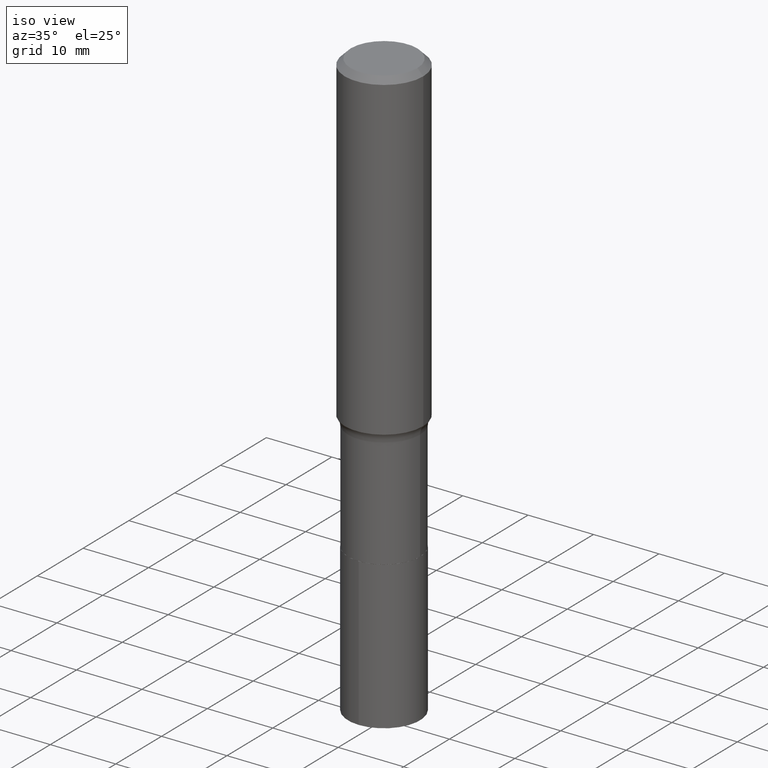
[diagram: clean part render]
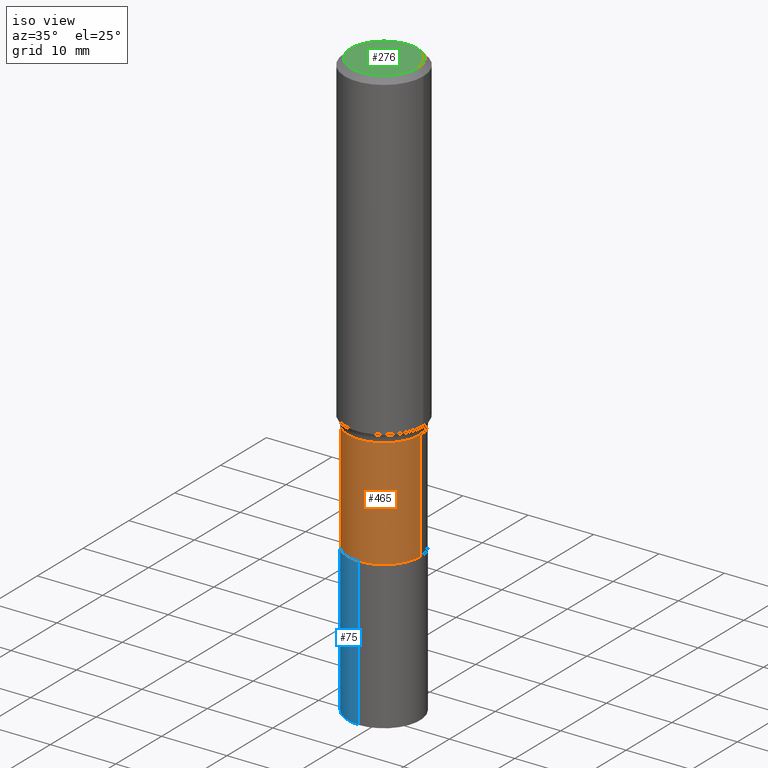
[diagram: same view with three faces highlighted in distinct colors, each labeled with its STEP entity id]
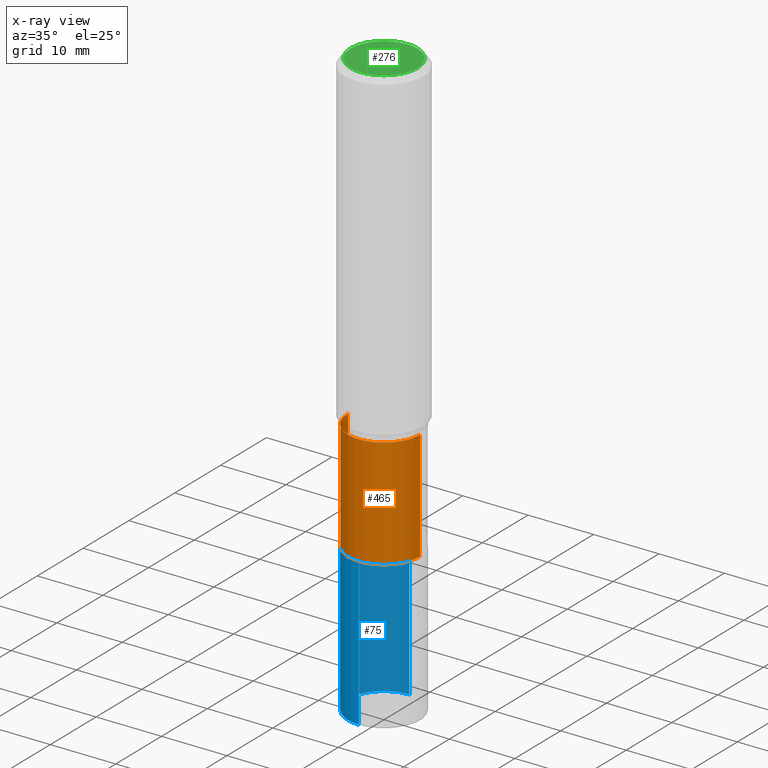
[diagram: x-ray of the same camera — body ghosted, the three highlighted faces saturated]
A machine part, iso view with three faces highlighted in distinct colors.
The next image is the same camera in x-ray (body ghosted, the three faces saturated) — at least one of them is partly hidden behind the body in this view.
Their STEP definitions:

[orange] entity #465 — the highlighted cylindrical surface (partial cylindrical patch) has radius 5.5004 mm, axis along (-0, 0, 1).
#22 = AXIS2_PLACEMENT_3D ( 'NONE', #266, #228, #132 ) ;
#27 = CARTESIAN_POINT ( 'NONE',  ( -0.2165500000000000203, 1.538680294288497096E-15, -1.065195393794699923E-29 ) ) ;
#45 = ORIENTED_EDGE ( 'NONE', *, *, #303, .F. ) ;
#52 = VERTEX_POINT ( 'NONE', #147 ) ;
#53 = VECTOR ( 'NONE', #339, 39.37007874015748143 ) ;
#59 = CARTESIAN_POINT ( 'NONE',  ( 0.2165500000000000480, -1.077436226353605461E-14, -2.652799999999999603 ) ) ;
#101 = DIRECTION ( 'NONE',  ( -2.445468806185136877E-29, 3.491481338843145188E-15, 1.000000000000000000 ) ) ;
#103 = CIRCLE ( 'NONE', #343, 0.2165500000000000480 ) ;
#107 = LINE ( 'NONE', #27, #287 ) ;
#128 = CIRCLE ( 'NONE', #171, 0.2165499999999999647 ) ;
#130 = ORIENTED_EDGE ( 'NONE', *, *, #220, .T. ) ;
#132 = DIRECTION ( 'NONE',  ( 1.000000000000000000, -6.982962677686266711E-15, 4.876176775795935793E-29 ) ) ;
#139 = DIRECTION ( 'NONE',  ( -2.445468806185136597E-29, 3.491481338843145583E-15, 1.000000000000000000 ) ) ;
#141 = FACE_OUTER_BOUND ( 'NONE', #446, .T. ) ;
#147 = CARTESIAN_POINT ( 'NONE',  ( 0.2165499999999999647, -8.461255876552473241E-15, -1.990299999999999736 ) ) ;
#171 = AXIS2_PLACEMENT_3D ( 'NONE', #429, #296, #225 ) ;
#191 = EDGE_CURVE ( 'NONE', #209, #196, #107, .T. ) ;
#196 = VERTEX_POINT ( 'NONE', #368 ) ;
#198 = VERTEX_POINT ( 'NONE', #59 ) ;
#209 = VERTEX_POINT ( 'NONE', #216 ) ;
#216 = CARTESIAN_POINT ( 'NONE',  ( -0.2165500000000000480, -6.566968207902806007E-15, -2.652799999999999603 ) ) ;
#220 = EDGE_CURVE ( 'NONE', #198, #52, #293, .T. ) ;
#225 = DIRECTION ( 'NONE',  ( 1.000000000000000000, -6.982962677686265922E-15, 0.000000000000000000 ) ) ;
#228 = DIRECTION ( 'NONE',  ( -2.445468806185136597E-29, 3.491481338843145583E-15, 1.000000000000000000 ) ) ;
#239 = EDGE_CURVE ( 'NONE', #209, #198, #103, .T. ) ;
#261 = CYLINDRICAL_SURFACE ( 'NONE', #22, 0.2165500000000000203 ) ;
#266 = CARTESIAN_POINT ( 'NONE',  ( 0.000000000000000000, 0.000000000000000000, 0.000000000000000000 ) ) ;
#287 = VECTOR ( 'NONE', #101, 39.37007874015748143 ) ;
#293 = LINE ( 'NONE', #462, #53 ) ;
#296 = DIRECTION ( 'NONE',  ( -2.445468806185136597E-29, 3.491481338843145583E-15, 1.000000000000000000 ) ) ;
#299 = CARTESIAN_POINT ( 'NONE',  ( 6.487339649047929428E-29, -9.262201695683093788E-15, -2.652799999999999603 ) ) ;
#303 = EDGE_CURVE ( 'NONE', #196, #52, #128, .T. ) ;
#339 = DIRECTION ( 'NONE',  ( -2.445468806185136877E-29, 3.491481338843145188E-15, 1.000000000000000000 ) ) ;
#343 = AXIS2_PLACEMENT_3D ( 'NONE', #299, #139, #402 ) ;
#368 = CARTESIAN_POINT ( 'NONE',  ( -0.2165499999999999647, -6.566968207902806007E-15, -1.990299999999999736 ) ) ;
#402 = DIRECTION ( 'NONE',  ( 1.000000000000000000, -6.982962677686263555E-15, 0.000000000000000000 ) ) ;
#406 = ORIENTED_EDGE ( 'NONE', *, *, #191, .F. ) ;
#429 = CARTESIAN_POINT ( 'NONE',  ( 4.867216564950276881E-29, -6.949095308699512418E-15, -1.990299999999999736 ) ) ;
#438 = ORIENTED_EDGE ( 'NONE', *, *, #239, .T. ) ;
#446 = EDGE_LOOP ( 'NONE', ( #406, #438, #130, #45 ) ) ;
#462 = CARTESIAN_POINT ( 'NONE',  ( 0.2165500000000000203, -1.512160567852961217E-15, 1.055936080798610036E-29 ) ) ;
#465 = ADVANCED_FACE ( 'NONE', ( #141 ), #261, .T. ) ;

[blue] entity #75 — the highlighted cylindrical surface (partial cylindrical patch) has radius 5.5004 mm, axis along (-0, 0, 1).
#8 = CARTESIAN_POINT ( 'NONE',  ( 1.538680294288561586E-15, 0.2165499999999907499, -2.653300000000000214 ) ) ;
#12 = EDGE_LOOP ( 'NONE', ( #88, #283, #280, #40 ) ) ;
#38 = AXIS2_PLACEMENT_3D ( 'NONE', #224, #330, #359 ) ;
#40 = ORIENTED_EDGE ( 'NONE', *, *, #348, .F. ) ;
#42 = EDGE_CURVE ( 'NONE', #340, #413, #364, .T. ) ;
#75 = ADVANCED_FACE ( 'NONE', ( #326 ), #358, .T. ) ;
#77 = CARTESIAN_POINT ( 'NONE',  ( -1.512160567852874245E-15, -0.2165500000000123715, -3.543299999999999894 ) ) ;
#83 = VECTOR ( 'NONE', #404, 39.37007874015748143 ) ;
#88 = ORIENTED_EDGE ( 'NONE', *, *, #407, .F. ) ;
#116 = CARTESIAN_POINT ( 'NONE',  ( 6.488562383451022229E-29, -9.263947436352516081E-15, -2.653299999999999770 ) ) ;
#120 = DIRECTION ( 'NONE',  ( -2.443805902237646551E-29, 3.493862711942566670E-15, 1.000000000000000000 ) ) ;
#149 = DIRECTION ( 'NONE',  ( -6.982962677686265133E-15, -1.000000000000000000, 2.523064413451178124E-15 ) ) ;
#184 = DIRECTION ( 'NONE',  ( -2.443805902237646271E-29, 3.493862711942566670E-15, 1.000000000000000000 ) ) ;
#194 = CARTESIAN_POINT ( 'NONE',  ( 1.538680294288583674E-15, 0.2165499999999907499, -2.653300000000000214 ) ) ;
#204 = AXIS2_PLACEMENT_3D ( 'NONE', #219, #264, #149 ) ;
#219 = CARTESIAN_POINT ( 'NONE',  ( 8.663549636442529927E-29, -1.237348524998140250E-14, -3.543300000000000338 ) ) ;
#224 = CARTESIAN_POINT ( 'NONE',  ( 6.488562383451022229E-29, -9.263947436352516081E-15, -2.653299999999999770 ) ) ;
#231 = CARTESIAN_POINT ( 'NONE',  ( -1.512160567852896136E-15, -0.2165500000000092629, -2.653299999999999326 ) ) ;
#264 = DIRECTION ( 'NONE',  ( -2.443805902237646271E-29, 3.493862711942566670E-15, 1.000000000000000000 ) ) ;
#280 = ORIENTED_EDGE ( 'NONE', *, *, #351, .T. ) ;
#283 = ORIENTED_EDGE ( 'NONE', *, *, #42, .T. ) ;
#288 = VERTEX_POINT ( 'NONE', #301 ) ;
#301 = CARTESIAN_POINT ( 'NONE',  ( -1.512160567852896136E-15, -0.2165500000000092629, -2.653299999999999326 ) ) ;
#302 = CIRCLE ( 'NONE', #419, 0.2165500000000000203 ) ;
#326 = FACE_OUTER_BOUND ( 'NONE', #12, .T. ) ;
#330 = DIRECTION ( 'NONE',  ( -2.443805902237646271E-29, 3.493862711942566670E-15, 1.000000000000000000 ) ) ;
#340 = VERTEX_POINT ( 'NONE', #431 ) ;
#348 = EDGE_CURVE ( 'NONE', #352, #288, #302, .T. ) ;
#351 = EDGE_CURVE ( 'NONE', #413, #288, #427, .T. ) ;
#352 = VERTEX_POINT ( 'NONE', #194 ) ;
#358 = CYLINDRICAL_SURFACE ( 'NONE', #38, 0.2165500000000000203 ) ;
#359 = DIRECTION ( 'NONE',  ( -6.982962677686265133E-15, -1.000000000000000000, 2.523064413451178124E-15 ) ) ;
#364 = CIRCLE ( 'NONE', #204, 0.2165500000000000203 ) ;
#375 = LINE ( 'NONE', #8, #383 ) ;
#383 = VECTOR ( 'NONE', #120, 39.37007874015748143 ) ;
#404 = DIRECTION ( 'NONE',  ( -2.443805902237646551E-29, 3.493862711942566670E-15, 1.000000000000000000 ) ) ;
#407 = EDGE_CURVE ( 'NONE', #340, #352, #375, .T. ) ;
#413 = VERTEX_POINT ( 'NONE', #77 ) ;
#419 = AXIS2_PLACEMENT_3D ( 'NONE', #116, #184, #464 ) ;
#427 = LINE ( 'NONE', #231, #83 ) ;
#431 = CARTESIAN_POINT ( 'NONE',  ( 1.538680294288572433E-15, 0.2165499999999876413, -3.543300000000000782 ) ) ;
#464 = DIRECTION ( 'NONE',  ( -6.982962677686265133E-15, -1.000000000000000000, 2.523064413451178124E-15 ) ) ;

[green] entity #276 — the highlighted planar face has unit normal (0, -0, -1).
#11 = DIRECTION ( 'NONE',  ( -2.445468806185136597E-29, 3.491481338843145583E-15, 1.000000000000000000 ) ) ;
#46 = CIRCLE ( 'NONE', #205, 0.2007700000000000040 ) ;
#62 = DIRECTION ( 'NONE',  ( -1.000000000000000000, 6.982962677686265922E-15, -4.876176775795935793E-29 ) ) ;
#66 = DIRECTION ( 'NONE',  ( 2.438088387897960049E-29, -3.491481338843145188E-15, -1.000000000000000000 ) ) ;
#68 = CIRCLE ( 'NONE', #190, 0.2007700000000000040 ) ;
#70 = CARTESIAN_POINT ( 'NONE',  ( 0.2007700000000000040, -1.560767496960719869E-15, 4.096137381458473721E-18 ) ) ;
#121 = ORIENTED_EDGE ( 'NONE', *, *, #430, .T. ) ;
#131 = EDGE_CURVE ( 'NONE', #322, #374, #46, .T. ) ;
#160 = EDGE_LOOP ( 'NONE', ( #318, #121 ) ) ;
#190 = AXIS2_PLACEMENT_3D ( 'NONE', #405, #208, #195 ) ;
#195 = DIRECTION ( 'NONE',  ( 1.000000000000000000, -6.982962677686266711E-15, 4.876140833081945105E-29 ) ) ;
#205 = AXIS2_PLACEMENT_3D ( 'NONE', #244, #11, #412 ) ;
#208 = DIRECTION ( 'NONE',  ( -2.445468806185136597E-29, 3.491481338843145583E-15, 1.000000000000000000 ) ) ;
#244 = CARTESIAN_POINT ( 'NONE',  ( -1.001697619218023151E-46, 1.430158722866391908E-32, 4.096137381448114529E-18 ) ) ;
#260 = PLANE ( 'NONE',  #321 ) ;
#276 = ADVANCED_FACE ( 'NONE', ( #300 ), #260, .F. ) ;
#300 = FACE_OUTER_BOUND ( 'NONE', #160, .T. ) ;
#318 = ORIENTED_EDGE ( 'NONE', *, *, #131, .T. ) ;
#321 = AXIS2_PLACEMENT_3D ( 'NONE', #392, #66, #62 ) ;
#322 = VERTEX_POINT ( 'NONE', #433 ) ;
#374 = VERTEX_POINT ( 'NONE', #70 ) ;
#392 = CARTESIAN_POINT ( 'NONE',  ( -5.008488096090115757E-47, 7.150793614331959538E-33, 2.048068690724057264E-18 ) ) ;
#405 = CARTESIAN_POINT ( 'NONE',  ( -1.001697619218023151E-46, 1.430158722866391908E-32, 4.096137381448114529E-18 ) ) ;
#412 = DIRECTION ( 'NONE',  ( 1.000000000000000000, -6.982962677686266711E-15, 4.876140833081945105E-29 ) ) ;
#430 = EDGE_CURVE ( 'NONE', #374, #322, #68, .T. ) ;
#433 = CARTESIAN_POINT ( 'NONE',  ( -0.2007700000000000040, 1.463821008716676943E-15, 4.096137381438094301E-18 ) ) ;